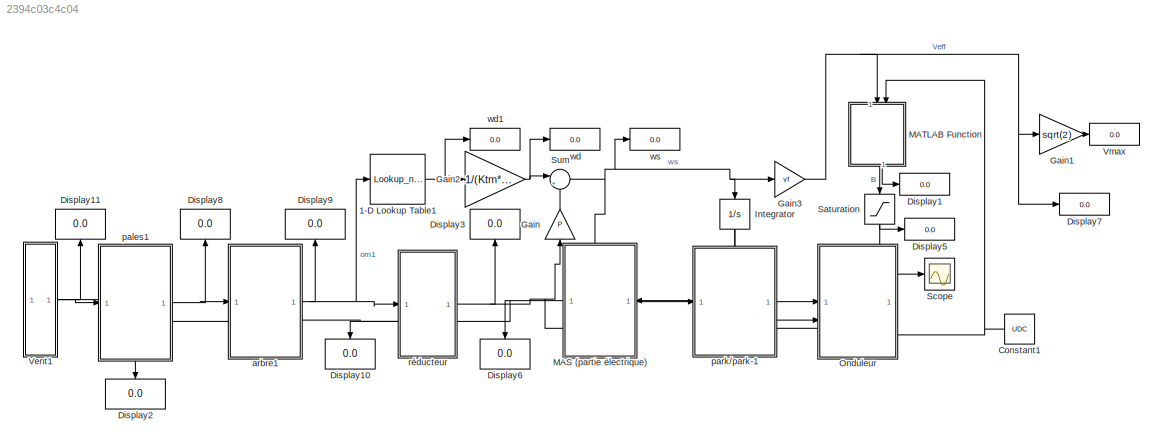
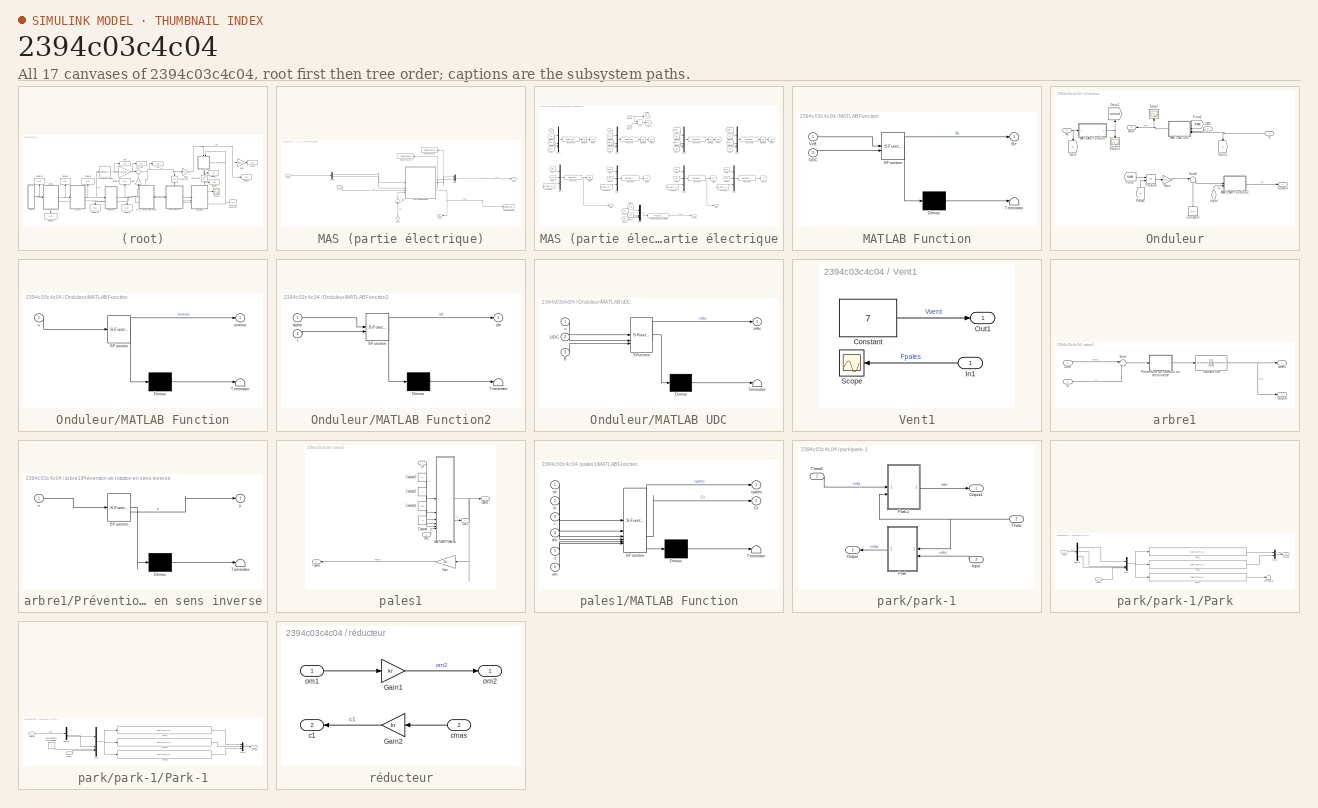
[diagram: thumbnail index - all 17 canvases of the model, root first then tree order]
MODEL slx_2394c03c4c04
KIND model
CONFIG AbsTol = auto
CONFIG EnableMultiTasking = off
CONFIG FixedStep = auto
CONFIG MaxStep = auto
CONFIG MinStep = auto
CONFIG RelTol = 1e-3
CONFIG SampleTimeConstraint = Unconstrained
CONFIG SolverName = VariableStepAuto
CONFIG StartTime = 0.0
CONFIG StopTime = 10.0
BLOCK [Lookup_n-D] 1-D Lookup Table1
  BreakpointsForDimension1 = temp
  InputPortMap = u0
  InternalRulePriority = Speed
  NumberOfTableDimensions = 1
  RndMeth = Simplest
  Table = cmaxfit
BLOCK [Constant] Constant1
  NameLocation = top
  Value = UDC
BLOCK [Display] Display1
  Decimation = 1
BLOCK [Display] Display10
  Decimation = 1
  NameLocation = left
BLOCK [Display] Display11
  Decimation = 1
  NameLocation = right
BLOCK [Display] Display2
  Decimation = 1
  NameLocation = left
BLOCK [Display] Display3
  Decimation = 1
  NameLocation = right
BLOCK [Display] Display5
  Decimation = 1
BLOCK [Display] Display6
  Decimation = 1
  NameLocation = left
BLOCK [Display] Display7
  Decimation = 1
BLOCK [Display] Display8
  Decimation = 1
  NameLocation = right
BLOCK [Display] Display9
  Decimation = 1
  NameLocation = right
BLOCK [Gain] Gain
  Gain = P
  NameLocation = right
BLOCK [Gain] Gain1
  Gain = sqrt(2)
BLOCK [Gain] Gain2
  Gain = 1/(Ktm*kr)
BLOCK [Gain] Gain3
  Gain = vf
BLOCK [Integrator] Integrator
  NameLocation = left
BLOCK [SubSystem] MAS (partie électrique)
  PortSchema = {"entries":[{"content":{"sides":[{"content":{"connectorIds":["Out2","In1"]},"type":"ConnectorPlacement.EquallySpacedRectSide","uuid":"2ecec5eb-5bb6-4f05-bbbb-1a51ae98f814"},{"content":{"connectorIds":["In3","Out1"],"side":"RIGHT"},"type":"ConnectorPlacement.EquallySpacedRectSide","uuid":"ddc3d36f-31b1-43d5-b617-6997f76d08f1"},{"content":{"connectorIds":["In2"],"side":"TOP"},"type":"ConnectorPlacem...<+258ch>
BLOCK [Outport] MAS (partie électrique)/Cmas
BLOCK [Demux] MAS (partie électrique)/Demux
  Outputs = 2
BLOCK [Gain] MAS (partie électrique)/Gain
  Gain = P
  NameLocation = left
BLOCK [Inport] MAS (partie électrique)/Input
  IconDisplay = Signal name
  NameLocation = right
  Port = 3
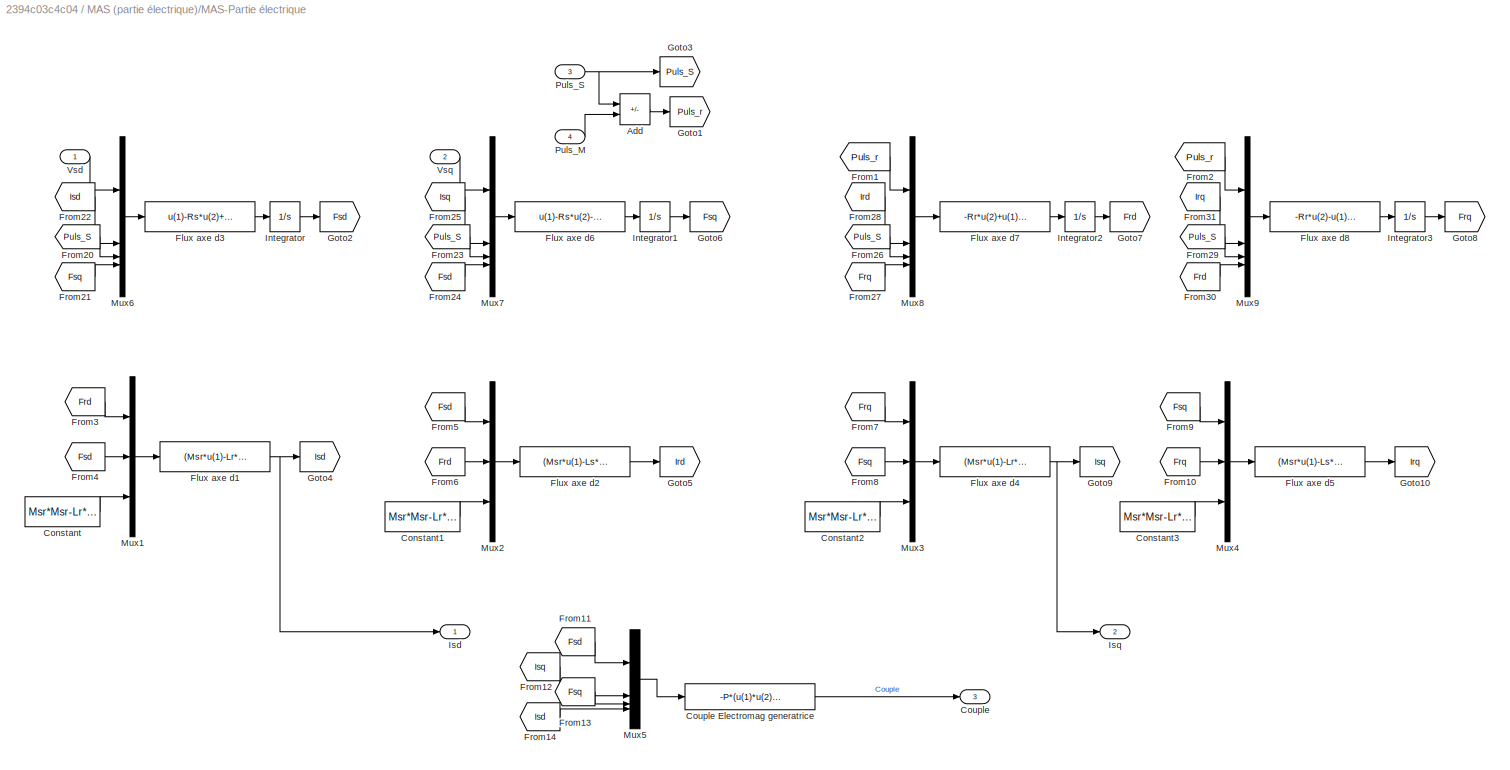
BLOCK [SubSystem] MAS (partie électrique)/MAS-Partie électrique
BLOCK [Sum] MAS (partie électrique)/MAS-Partie électrique/Add
  IconShape = rectangular
  Inputs = +-
BLOCK [Constant] MAS (partie électrique)/MAS-Partie électrique/Constant
  Value = Msr*Msr-Lr*Ls
BLOCK [Constant] MAS (partie électrique)/MAS-Partie électrique/Constant1
  Value = Msr*Msr-Lr*Ls
BLOCK [Constant] MAS (partie électrique)/MAS-Partie électrique/Constant2
  Value = Msr*Msr-Lr*Ls
BLOCK [Constant] MAS (partie électrique)/MAS-Partie électrique/Constant3
  Value = Msr*Msr-Lr*Ls
BLOCK [Outport] MAS (partie électrique)/MAS-Partie électrique/Couple
  Port = 3
BLOCK [Fcn] MAS (partie électrique)/MAS-Partie électrique/Couple Electromag generatrice
  Expr = -P*(u(1)*u(2)-u(3)*u(4))
BLOCK [Fcn] MAS (partie électrique)/MAS-Partie électrique/Flux axe d1
  Expr = (Msr*u(1)-Lr*u(2))/u(3)
BLOCK [Fcn] MAS (partie électrique)/MAS-Partie électrique/Flux axe d2
  Expr = (Msr*u(1)-Ls*u(2))/u(3)
BLOCK [Fcn] MAS (partie électrique)/MAS-Partie électrique/Flux axe d3
  Expr = u(1)-Rs*u(2)+u(3)*u(4)
BLOCK [Fcn] MAS (partie électrique)/MAS-Partie électrique/Flux axe d4
  Expr = (Msr*u(1)-Lr*u(2))/u(3)
BLOCK [Fcn] MAS (partie électrique)/MAS-Partie électrique/Flux axe d5
  Expr = (Msr*u(1)-Ls*u(2))/u(3)
BLOCK [Fcn] MAS (partie électrique)/MAS-Partie électrique/Flux axe d6
  Expr = u(1)-Rs*u(2)-u(3)*u(4)
BLOCK [Fcn] MAS (partie électrique)/MAS-Partie électrique/Flux axe d7
  Expr = -Rr*u(2)+u(1)*u(4)
BLOCK [Fcn] MAS (partie électrique)/MAS-Partie électrique/Flux axe d8
  Expr = -Rr*u(2)-u(1)*u(4)
BLOCK [From] MAS (partie électrique)/MAS-Partie électrique/From1
  GotoTag = Puls_r
BLOCK [From] MAS (partie électrique)/MAS-Partie électrique/From10
  GotoTag = Frq
BLOCK [From] MAS (partie électrique)/MAS-Partie électrique/From11
  GotoTag = Fsd
BLOCK [From] MAS (partie électrique)/MAS-Partie électrique/From12
  GotoTag = Isq
BLOCK [From] MAS (partie électrique)/MAS-Partie électrique/From13
  GotoTag = Fsq
BLOCK [From] MAS (partie électrique)/MAS-Partie électrique/From14
  GotoTag = Isd
BLOCK [From] MAS (partie électrique)/MAS-Partie électrique/From2
  GotoTag = Puls_r
BLOCK [From] MAS (partie électrique)/MAS-Partie électrique/From20
  GotoTag = Puls_S
  IconDisplay = Signal name
BLOCK [From] MAS (partie électrique)/MAS-Partie électrique/From21
  GotoTag = Fsq
BLOCK [From] MAS (partie électrique)/MAS-Partie électrique/From22
  GotoTag = Isd
BLOCK [From] MAS (partie électrique)/MAS-Partie électrique/From23
  GotoTag = Puls_S
  IconDisplay = Signal name
BLOCK [From] MAS (partie électrique)/MAS-Partie électrique/From24
  GotoTag = Fsd
BLOCK [From] MAS (partie électrique)/MAS-Partie électrique/From25
  GotoTag = Isq
BLOCK [From] MAS (partie électrique)/MAS-Partie électrique/From26
  GotoTag = Puls_S
  IconDisplay = Signal name
BLOCK [From] MAS (partie électrique)/MAS-Partie électrique/From27
  GotoTag = Frq
BLOCK [From] MAS (partie électrique)/MAS-Partie électrique/From28
  GotoTag = Ird
BLOCK [From] MAS (partie électrique)/MAS-Partie électrique/From29
  GotoTag = Puls_S
  IconDisplay = Signal name
BLOCK [From] MAS (partie électrique)/MAS-Partie électrique/From3
  GotoTag = Frd
BLOCK [From] MAS (partie électrique)/MAS-Partie électrique/From30
  GotoTag = Frd
BLOCK [From] MAS (partie électrique)/MAS-Partie électrique/From31
  GotoTag = Irq
BLOCK [From] MAS (partie électrique)/MAS-Partie électrique/From4
  GotoTag = Fsd
BLOCK [From] MAS (partie électrique)/MAS-Partie électrique/From5
  GotoTag = Fsd
BLOCK [From] MAS (partie électrique)/MAS-Partie électrique/From6
  GotoTag = Frd
BLOCK [From] MAS (partie électrique)/MAS-Partie électrique/From7
  GotoTag = Frq
BLOCK [From] MAS (partie électrique)/MAS-Partie électrique/From8
  GotoTag = Fsq
BLOCK [From] MAS (partie électrique)/MAS-Partie électrique/From9
  GotoTag = Fsq
BLOCK [Goto] MAS (partie électrique)/MAS-Partie électrique/Goto1
  GotoTag = Puls_r
BLOCK [Goto] MAS (partie électrique)/MAS-Partie électrique/Goto10
  GotoTag = Irq
BLOCK [Goto] MAS (partie électrique)/MAS-Partie électrique/Goto2
  GotoTag = Fsd
BLOCK [Goto] MAS (partie électrique)/MAS-Partie électrique/Goto3
  GotoTag = Puls_S
BLOCK [Goto] MAS (partie électrique)/MAS-Partie électrique/Goto4
  GotoTag = Isd
BLOCK [Goto] MAS (partie électrique)/MAS-Partie électrique/Goto5
  GotoTag = Ird
BLOCK [Goto] MAS (partie électrique)/MAS-Partie électrique/Goto6
  GotoTag = Fsq
BLOCK [Goto] MAS (partie électrique)/MAS-Partie électrique/Goto7
  GotoTag = Frd
BLOCK [Goto] MAS (partie électrique)/MAS-Partie électrique/Goto8
  GotoTag = Frq
BLOCK [Goto] MAS (partie électrique)/MAS-Partie électrique/Goto9
  GotoTag = Isq
BLOCK [Integrator] MAS (partie électrique)/MAS-Partie électrique/Integrator
BLOCK [Integrator] MAS (partie électrique)/MAS-Partie électrique/Integrator1
BLOCK [Integrator] MAS (partie électrique)/MAS-Partie électrique/Integrator2
BLOCK [Integrator] MAS (partie électrique)/MAS-Partie électrique/Integrator3
BLOCK [Outport] MAS (partie électrique)/MAS-Partie électrique/Isd
BLOCK [Outport] MAS (partie électrique)/MAS-Partie électrique/Isq
  Port = 2
BLOCK [Mux] MAS (partie électrique)/MAS-Partie électrique/Mux1
  DisplayOption = bar
  Inputs = 3
BLOCK [Mux] MAS (partie électrique)/MAS-Partie électrique/Mux2
  DisplayOption = bar
  Inputs = 3
BLOCK [Mux] MAS (partie électrique)/MAS-Partie électrique/Mux3
  DisplayOption = bar
  Inputs = 3
BLOCK [Mux] MAS (partie électrique)/MAS-Partie électrique/Mux4
  DisplayOption = bar
  Inputs = 3
BLOCK [Mux] MAS (partie électrique)/MAS-Partie électrique/Mux5
  DisplayOption = bar
BLOCK [Mux] MAS (partie électrique)/MAS-Partie électrique/Mux6
  DisplayOption = bar
BLOCK [Mux] MAS (partie électrique)/MAS-Partie électrique/Mux7
  DisplayOption = bar
BLOCK [Mux] MAS (partie électrique)/MAS-Partie électrique/Mux8
  DisplayOption = bar
BLOCK [Mux] MAS (partie électrique)/MAS-Partie électrique/Mux9
  DisplayOption = bar
BLOCK [Inport] MAS (partie électrique)/MAS-Partie électrique/Puls_M
  Port = 4
BLOCK [Inport] MAS (partie électrique)/MAS-Partie électrique/Puls_S
  Port = 3
BLOCK [Inport] MAS (partie électrique)/MAS-Partie électrique/Vsd
BLOCK [Inport] MAS (partie électrique)/MAS-Partie électrique/Vsq
  Port = 2
BLOCK [Mux] MAS (partie électrique)/Mux
  DisplayOption = bar
  Inputs = 2
BLOCK [ToWorkspace] MAS (partie électrique)/To Workspace
  FixptAsFi = on
  MaxDataPoints = inf
  SampleTime = -1
  Save2DSignal = 2-D array (concatenate along first dimension)
  VariableName = Couple
BLOCK [ToWorkspace] MAS (partie électrique)/To Workspace2
  FixptAsFi = on
  MaxDataPoints = inf
  NameLocation = top
  SampleTime = -1
  SaveFormat = Timeseries
  VariableName = Isd
BLOCK [ToWorkspace] MAS (partie électrique)/To Workspace3
  FixptAsFi = on
  MaxDataPoints = inf
  NameLocation = top
  SampleTime = -1
  SaveFormat = Timeseries
  VariableName = Isq
BLOCK [Outport] MAS (partie électrique)/isdq
  Port = 2
BLOCK [Inport] MAS (partie électrique)/vsdq
BLOCK [Inport] MAS (partie électrique)/vsdq1
  IconDisplay = Signal name
  Port = 2
BLOCK [SubSystem] MATLAB Function
  ErrorFcn = Stateflow.Translate.translate
  NameLocation = left
  PermitHierarchicalResolution = ExplicitOnly
  SFBlockType = MATLAB Function
  TreatAsAtomicUnit = on
BLOCK [Demux] MATLAB Function/ Demux 
  Outputs = 1
BLOCK [S-Function] MATLAB Function/ SFunction 
  EnableBusSupport = on
  FunctionName = sf_sfun
  PortCounts = [2 2]
  SFcnIsStateOwnerBlock = off
  SFunctionDeploymentMode = off
  Tag = Stateflow S-Function 4
BLOCK [Terminator] MATLAB Function/ Terminator 
BLOCK [Outport] MATLAB Function/Be
BLOCK [Inport] MATLAB Function/UDC
  Port = 2
BLOCK [Inport] MATLAB Function/Veff
BLOCK [SubSystem] Onduleur
  PortSchema = {"entries":[{"content":{"sides":[{"content":{"connectorIds":["In1","Out2"]},"type":"ConnectorPlacement.EquallySpacedRectSide","uuid":"b96697a1-7390-4a4c-a090-1d4840f94579"},{"content":{"connectorIds":["Out1","In4"],"side":"RIGHT"},"type":"ConnectorPlacement.EquallySpacedRectSide","uuid":"06d1d8c6-d481-421b-9786-6ed8bea33fb5"},{"content":{"connectorIds":["In2","In3"],"side":"TOP"},"type":"Connector...<+264ch>
BLOCK [Inport] Onduleur/B
  NameLocation = top
  Port = 3
BLOCK [Constant] Onduleur/Constant
  NameLocation = right
  Value = 0.5
BLOCK [From] Onduleur/From
  GotoTag = sinout
BLOCK [From] Onduleur/From1
  GotoTag = B
  NameLocation = right
BLOCK [From] Onduleur/From2
  GotoTag = sinout
  NameLocation = top
BLOCK [Gain] Onduleur/Gain
  Gain = 0.5
BLOCK [Goto] Onduleur/Goto
  GotoTag = wt
  NameLocation = left
  TagVisibility = global
BLOCK [Goto] Onduleur/Goto1
  GotoTag = B
  NameLocation = left
BLOCK [Goto] Onduleur/Goto2
  GotoTag = sinout
  NameLocation = right
BLOCK [Inport] Onduleur/Input
  IconDisplay = Signal name
  NameLocation = right
BLOCK [SubSystem] Onduleur/MATLAB Function
  ErrorFcn = Stateflow.Translate.translate
  LibrarySourceBlock = simulink/User-Defined\nFunctions/MATLAB Function
  PermitHierarchicalResolution = ExplicitOnly
  SFBlockType = MATLAB Function
  TreatAsAtomicUnit = on
BLOCK [Demux] Onduleur/MATLAB Function/ Demux 
  Outputs = 1
BLOCK [S-Function] Onduleur/MATLAB Function/ SFunction 
  EnableBusSupport = on
  FunctionName = sf_sfun
  PortCounts = [1 2]
  SFcnIsStateOwnerBlock = off
  SFunctionDeploymentMode = off
  Tag = Stateflow S-Function 2
BLOCK [Terminator] Onduleur/MATLAB Function/ Terminator 
BLOCK [Outport] Onduleur/MATLAB Function/sineout
BLOCK [Inport] Onduleur/MATLAB Function/u
BLOCK [SubSystem] Onduleur/MATLAB Function2
  ErrorFcn = Stateflow.Translate.translate
  PermitHierarchicalResolution = ExplicitOnly
  SFBlockType = MATLAB Function
  TreatAsAtomicUnit = on
BLOCK [Demux] Onduleur/MATLAB Function2/ Demux 
  Outputs = 1
BLOCK [S-Function] Onduleur/MATLAB Function2/ SFunction 
  EnableBusSupport = on
  FunctionName = sf_sfun
  PortCounts = [2 2]
  SFcnIsStateOwnerBlock = off
  SFunctionDeploymentMode = off
  Tag = Stateflow S-Function 1
BLOCK [Terminator] Onduleur/MATLAB Function2/ Terminator 
BLOCK [Inport] Onduleur/MATLAB Function2/I
  Port = 2
BLOCK [Inport] Onduleur/MATLAB Function2/alpha
BLOCK [Outport] Onduleur/MATLAB Function2/idc
BLOCK [SubSystem] Onduleur/MATLAB UDC
  ErrorFcn = Stateflow.Translate.translate
  NameLocation = top
  PermitHierarchicalResolution = ExplicitOnly
  SFBlockType = MATLAB Function
  TreatAsAtomicUnit = on
BLOCK [Demux] Onduleur/MATLAB UDC/ Demux 
  Outputs = 1
BLOCK [S-Function] Onduleur/MATLAB UDC/ SFunction 
  EnableBusSupport = on
  FunctionName = sf_sfun
  PortCounts = [3 2]
  SFcnIsStateOwnerBlock = off
  SFunctionDeploymentMode = off
  Tag = Stateflow S-Function 6
BLOCK [Terminator] Onduleur/MATLAB UDC/ Terminator 
BLOCK [Inport] Onduleur/MATLAB UDC/B
  Port = 3
BLOCK [Inport] Onduleur/MATLAB UDC/UDC
  Port = 2
BLOCK [Inport] Onduleur/MATLAB UDC/u
BLOCK [Outport] Onduleur/MATLAB UDC/vabc
BLOCK [Outport] Onduleur/Output
  IconDisplay = Signal name
BLOCK [Product] Onduleur/Product
BLOCK [Scope] Onduleur/Scope
  Floating = off
  NameLocation = right
  NumInputPorts = 1
  ScopeSpecificationString = Simulink.scopes.TimeScopeBlockCfg('CurrentConfiguration', extmgr.ConfigurationSet(extmgr.Configuration('Core','General UI',true),extmgr.Configuration('Core','Source UI',true),extmgr.Configuration('Sources','WiredSimulink',true,'DataLoggingVariableName','ScopeData1'),extmgr.Configuration('Visuals','Time Domain',true,'SerializedDisplays',{struct('MinYLimReal','-243.71583','MaxYLimReal','231.75912','...<+1779ch>
BLOCK [Scope] Onduleur/Scope1
  Floating = off
  NameLocation = left
  NumInputPorts = 1
  ScopeSpecificationString = Simulink.scopes.TimeScopeBlockCfg('CurrentConfiguration', extmgr.ConfigurationSet(extmgr.Configuration('Core','General UI',true),extmgr.Configuration('Core','Source UI',true),extmgr.Configuration('Sources','WiredSimulink',true,'DataLoggingVariableName','ScopeData1'),extmgr.Configuration('Visuals','Time Domain',true,'SerializedDisplays',{struct('MinYLimReal','-1.06937','MaxYLimReal','0.97928','YLab...<+1435ch>
BLOCK [Sum] Onduleur/Sum6
  Inputs = |++
BLOCK [Inport] Onduleur/UDC
  NameLocation = top
  Port = 4
BLOCK [Outport] Onduleur/vabc
  Port = 2
BLOCK [Inport] Onduleur/wt
  NameLocation = top
  Port = 2
BLOCK [Saturate] Saturation
  LowerLimit = 0
  NameLocation = left
  UpperLimit = 1
BLOCK [Scope] Scope
  Floating = off
  NumInputPorts = 1
  ScopeSpecificationString = Simulink.scopes.TimeScopeBlockCfg('CurrentConfiguration', extmgr.ConfigurationSet(extmgr.Configuration('Core','General UI',true),extmgr.Configuration('Core','Source UI',true),extmgr.Configuration('Sources','WiredSimulink',true,'DataLoggingVariableName','ScopeData2'),extmgr.Configuration('Visuals','Time Domain',true,'SerializedDisplays',{struct('MinYLimReal','-0.188','MaxYLimReal','1.2315','YLabelR...<+1382ch>
BLOCK [Sum] Sum
  Inputs = |++
BLOCK [SubSystem] Vent1
  PortSchema = {"entries":[{"content":{"sides":[{"content":{"connectorIds":[]},"type":"ConnectorPlacement.EquallySpacedRectSide","uuid":"be9e5db0-62db-41cd-9655-d6d790779573"},{"content":{"connectorIds":["Out1","In1"],"side":"RIGHT"},"type":"ConnectorPlacement.EquallySpacedRectSide","uuid":"b5e788b3-1e5f-4899-a162-7a564b67bc63"},{"content":{"connectorIds":[],"side":"TOP"},"type":"ConnectorPlacement.EquallySpaced...<+241ch>
BLOCK [Constant] Vent1/Constant
  Value = 7
BLOCK [Inport] Vent1/In1
  IconDisplay = Signal name
BLOCK [Outport] Vent1/Out1
  IconDisplay = Signal name
BLOCK [Scope] Vent1/Scope
  Floating = off
  NameLocation = top
  NumInputPorts = 1
  ScopeSpecificationString = Simulink.scopes.TimeScopeBlockCfg('CurrentConfiguration', extmgr.ConfigurationSet(extmgr.Configuration('Core','General UI',true),extmgr.Configuration('Core','Source UI',true),extmgr.Configuration('Sources','WiredSimulink',true),extmgr.Configuration('Visuals','Time Domain',true),extmgr.Configuration('Tools','Plot Navigation',true),extmgr.Configuration('Tools','Measurements',true)),'Version','2022a'...<+1ch>
BLOCK [Display] Vmax
  Decimation = 1
BLOCK [SubSystem] arbre1
  PortSchema = {"entries":[{"content":{"sides":[{"content":{"connectorIds":["In1","Out2"]},"type":"ConnectorPlacement.EquallySpacedRectSide","uuid":"b8908f99-787f-4ebd-a8c4-361ef654133e"},{"content":{"connectorIds":["Out1","In2"],"side":"RIGHT"},"type":"ConnectorPlacement.EquallySpacedRectSide","uuid":"e7049b46-0747-4182-8580-458ffa90f1c3"},{"content":{"connectorIds":[],"side":"TOP"},"type":"ConnectorPlacement.E...<+253ch>
BLOCK [Inport] arbre1/Cem
  IconDisplay = Signal name
BLOCK [Inport] arbre1/Cr
  IconDisplay = Signal name
  Port = 2
BLOCK [Outport] arbre1/Output
  IconDisplay = Signal name
  Port = 2
BLOCK [SubSystem] arbre1/Prévention de rotation en sens inverse
  ErrorFcn = Stateflow.Translate.translate
  LibrarySourceBlock = simulink/User-Defined\nFunctions/MATLAB Function
  PermitHierarchicalResolution = ExplicitOnly
  SFBlockType = MATLAB Function
  TreatAsAtomicUnit = on
BLOCK [Demux] arbre1/Prévention de rotation en sens inverse/ Demux 
  Outputs = 1
BLOCK [S-Function] arbre1/Prévention de rotation en sens inverse/ SFunction 
  EnableBusSupport = on
  FunctionName = sf_sfun
  PortCounts = [1 2]
  SFcnIsStateOwnerBlock = off
  SFunctionDeploymentMode = off
  Tag = Stateflow S-Function 3
BLOCK [Terminator] arbre1/Prévention de rotation en sens inverse/ Terminator 
BLOCK [Inport] arbre1/Prévention de rotation en sens inverse/u
BLOCK [Outport] arbre1/Prévention de rotation en sens inverse/y
BLOCK [Sum] arbre1/Sum
  Inputs = |++
BLOCK [TransferFcn] arbre1/Transfer Fcn
  Denominator = [J f]
BLOCK [Outport] arbre1/wmec
  IconDisplay = Signal name
BLOCK [SubSystem] pales1
  PortSchema = {"entries":[{"content":{"sides":[{"content":{"connectorIds":["In1","Out3"]},"type":"ConnectorPlacement.EquallySpacedRectSide","uuid":"2ecec5eb-5bb6-4f05-bbbb-1a51ae98f814"},{"content":{"connectorIds":["Out1","In2"],"side":"RIGHT"},"type":"ConnectorPlacement.EquallySpacedRectSide","uuid":"ddc3d36f-31b1-43d5-b617-6997f76d08f1"},{"content":{"connectorIds":[],"side":"TOP"},"type":"ConnectorPlacement.E...<+403ch>
BLOCK [Constant] pales1/Constant
  Value = s
BLOCK [Constant] pales1/Constant1
  Value = rho
BLOCK [Constant] pales1/Constant2
  Value = r
BLOCK [Constant] pales1/Constant3
  Value = b
BLOCK [Outport] pales1/Fpales
  Port = 3
BLOCK [Gain] pales1/Gain
  Gain = 1/r
  NameLocation = top
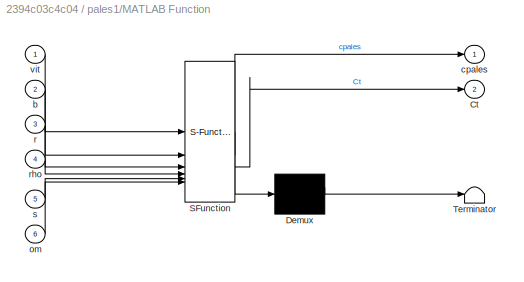
BLOCK [SubSystem] pales1/MATLAB Function
  ErrorFcn = Stateflow.Translate.translate
  PermitHierarchicalResolution = ExplicitOnly
  SFBlockType = MATLAB Function
  TreatAsAtomicUnit = on
BLOCK [Demux] pales1/MATLAB Function/ Demux 
  Outputs = 1
BLOCK [S-Function] pales1/MATLAB Function/ SFunction 
  EnableBusSupport = on
  FunctionName = sf_sfun
  PortCounts = [6 3]
  SFcnIsStateOwnerBlock = off
  SFunctionDeploymentMode = off
  Tag = Stateflow S-Function 5
BLOCK [Terminator] pales1/MATLAB Function/ Terminator 
BLOCK [Outport] pales1/MATLAB Function/Ct
  Port = 2
BLOCK [Inport] pales1/MATLAB Function/b
  Port = 2
BLOCK [Outport] pales1/MATLAB Function/cpales
BLOCK [Inport] pales1/MATLAB Function/om
  Port = 6
BLOCK [Inport] pales1/MATLAB Function/r
  Port = 3
BLOCK [Inport] pales1/MATLAB Function/rho
  Port = 4
BLOCK [Inport] pales1/MATLAB Function/s
  Port = 5
BLOCK [Inport] pales1/MATLAB Function/vit
BLOCK [Outport] pales1/Out1
  IconDisplay = Signal name
  Port = 2
BLOCK [Outport] pales1/cpales
BLOCK [Inport] pales1/om1
  Port = 2
BLOCK [Inport] pales1/vit
BLOCK [SubSystem] park//park-1
  PortSchema = {"entries":[{"content":{"sides":[{"content":{"connectorIds":["In1","Out2"]},"type":"ConnectorPlacement.EquallySpacedRectSide","uuid":"83ad06b1-0178-473a-86b5-0d897bfdf029"},{"content":{"connectorIds":["Out1","In3"],"side":"RIGHT"},"type":"ConnectorPlacement.EquallySpacedRectSide","uuid":"370b5efa-4dd6-4b26-a8f3-51e0a3b4d610"},{"content":{"connectorIds":["In2"],"side":"TOP"},"type":"ConnectorPlacem...<+402ch>
BLOCK [Inport] park//park-1/Input
  IconDisplay = Signal name
  Port = 3
BLOCK [Outport] park//park-1/Output
  IconDisplay = Signal name
  Port = 2
BLOCK [Outport] park//park-1/Output1
  IconDisplay = Signal name
BLOCK [SubSystem] park//park-1/Park
  NameLocation = top
BLOCK [SubSystem] park//park-1/Park-1
BLOCK [Fcn] park//park-1/Park-1/Axe_d
  Expr = sqrt(2/3)*(u(1)*cos(u(4))-u(2)*sin(u(4))+u(3)*(1/sqrt(2)))
BLOCK [Fcn] park//park-1/Park-1/Axe_d1
  Expr = sqrt(2/3)*(u(1)*cos(u(4)-2*pi/3)-u(2)*sin(u(4)-2*pi/3)+u(3)*(1/sqrt(2)))
BLOCK [Fcn] park//park-1/Park-1/Axe_d2
  Expr = sqrt(2/3)*(u(1)*cos(u(4)+2*pi/3)-u(2)*sin(u(4)+2*pi/3)+u(3)*(1/sqrt(2)))
BLOCK [Constant] park//park-1/Park-1/Composante homopolaire
  Value = 0
BLOCK [Demux] park//park-1/Park-1/Demux
  Outputs = 2
BLOCK [Mux] park//park-1/Park-1/Mux
  DisplayOption = bar
BLOCK [Mux] park//park-1/Park-1/Mux1
  DisplayOption = bar
  Inputs = 3
BLOCK [Outport] park//park-1/Park-1/Output
  IconDisplay = Signal name
BLOCK [Inport] park//park-1/Park-1/Theta
  Port = 2
BLOCK [Inport] park//park-1/Park-1/Theta1
  IconDisplay = Signal name
BLOCK [Fcn] park//park-1/Park/ Axe_h
  Expr = sqrt(2/3)*(u(1)*(1/sqrt(2))+u(2)*(1/sqrt(2))+u(3)*(1/sqrt(2)))
BLOCK [Fcn] park//park-1/Park/ Axe_q
  Expr = sqrt(2/3)*(-u(1)*sin(u(4))-u(2)*sin(u(4)-2*pi/3)-u(3)*sin(u(4)-4*pi/3))
BLOCK [Fcn] park//park-1/Park/Axe_d
  Expr = sqrt(2/3)*(u(1)*cos(u(4))+u(2)*cos(u(4)-2*pi/3)+u(3)*cos(u(4)-4*pi/3))
BLOCK [Demux] park//park-1/Park/Demux
  Outputs = 3
BLOCK [Inport] park//park-1/Park/Input
  IconDisplay = Signal name
  Port = 2
BLOCK [Mux] park//park-1/Park/Mux
  DisplayOption = bar
BLOCK [Mux] park//park-1/Park/Mux1
  DisplayOption = bar
  Inputs = 2
BLOCK [Outport] park//park-1/Park/Output
  IconDisplay = Signal name
BLOCK [Terminator] park//park-1/Park/Terminator
BLOCK [Inport] park//park-1/Park/Theta
BLOCK [Inport] park//park-1/Theta
  Port = 2
BLOCK [Inport] park//park-1/Theta1
  IconDisplay = Signal name
BLOCK [SubSystem] réducteur
  PortSchema = {"entries":[{"content":{"sides":[{"content":{"connectorIds":["In1","Out2"]},"type":"ConnectorPlacement.EquallySpacedRectSide","uuid":"2ecec5eb-5bb6-4f05-bbbb-1a51ae98f814"},{"content":{"connectorIds":["Out1","In2"],"side":"RIGHT"},"type":"ConnectorPlacement.EquallySpacedRectSide","uuid":"ddc3d36f-31b1-43d5-b617-6997f76d08f1"},{"content":{"connectorIds":[],"side":"TOP"},"type":"ConnectorPlacement.E...<+253ch>
BLOCK [Gain] réducteur/Gain1
  Gain = kr
BLOCK [Gain] réducteur/Gain2
  Gain = kr
  NameLocation = top
BLOCK [Outport] réducteur/c1
  Port = 2
BLOCK [Inport] réducteur/cmas
  NameLocation = top
  Port = 2
BLOCK [Inport] réducteur/om1
BLOCK [Outport] réducteur/om2
BLOCK [Display] wd
  Decimation = 1
BLOCK [Display] wd1
  Decimation = 1
BLOCK [Display] ws
  Decimation = 1
ANNOTATION park//park-1/Park-1: d
NET 1-D Lookup Table1:1 -> Gain2:1, wd1:1
NET Constant1:1 -> MATLAB Function:2, Onduleur:4
LINE Gain1:1 -> Vmax:1
NET Gain2:1 -> Sum:1, wd:1
NET Gain3:1 -> Display7:1, Gain1:1, MATLAB Function:1
LINE Gain:1 -> Sum:2
NET Integrator:1 -> Onduleur:2, park//park-1:2
LINE MAS (partie électrique)/Demux:1 -> MAS (partie électrique)/MAS-Partie électrique:1
LINE MAS (partie électrique)/Demux:2 -> MAS (partie électrique)/MAS-Partie électrique:2
LINE MAS (partie électrique)/Gain:1 -> MAS (partie électrique)/MAS-Partie électrique:4
LINE MAS (partie électrique)/Input:1 -> MAS (partie électrique)/Gain:1
LINE MAS (partie électrique)/MAS-Partie électrique/Add:1 -> MAS (partie électrique)/MAS-Partie électrique/Goto1:1
LINE MAS (partie électrique)/MAS-Partie électrique/Constant1:1 -> MAS (partie électrique)/MAS-Partie électrique/Mux2:3
LINE MAS (partie électrique)/MAS-Partie électrique/Constant2:1 -> MAS (partie électrique)/MAS-Partie électrique/Mux3:3
LINE MAS (partie électrique)/MAS-Partie électrique/Constant3:1 -> MAS (partie électrique)/MAS-Partie électrique/Mux4:3
LINE MAS (partie électrique)/MAS-Partie électrique/Constant:1 -> MAS (partie électrique)/MAS-Partie électrique/Mux1:3
LINE MAS (partie électrique)/MAS-Partie électrique/Couple Electromag generatrice:1 -> MAS (partie électrique)/MAS-Partie électrique/Couple:1
NET MAS (partie électrique)/MAS-Partie électrique/Flux axe d1:1 -> MAS (partie électrique)/MAS-Partie électrique/Goto4:1, MAS (partie électrique)/MAS-Partie électrique/Isd:1
LINE MAS (partie électrique)/MAS-Partie électrique/Flux axe d2:1 -> MAS (partie électrique)/MAS-Partie électrique/Goto5:1
LINE MAS (partie électrique)/MAS-Partie électrique/Flux axe d3:1 -> MAS (partie électrique)/MAS-Partie électrique/Integrator:1
NET MAS (partie électrique)/MAS-Partie électrique/Flux axe d4:1 -> MAS (partie électrique)/MAS-Partie électrique/Goto9:1, MAS (partie électrique)/MAS-Partie électrique/Isq:1
LINE MAS (partie électrique)/MAS-Partie électrique/Flux axe d5:1 -> MAS (partie électrique)/MAS-Partie électrique/Goto10:1
LINE MAS (partie électrique)/MAS-Partie électrique/Flux axe d6:1 -> MAS (partie électrique)/MAS-Partie électrique/Integrator1:1
LINE MAS (partie électrique)/MAS-Partie électrique/Flux axe d7:1 -> MAS (partie électrique)/MAS-Partie électrique/Integrator2:1
LINE MAS (partie électrique)/MAS-Partie électrique/Flux axe d8:1 -> MAS (partie électrique)/MAS-Partie électrique/Integrator3:1
LINE MAS (partie électrique)/MAS-Partie électrique/From10:1 -> MAS (partie électrique)/MAS-Partie électrique/Mux4:2
LINE MAS (partie électrique)/MAS-Partie électrique/From11:1 -> MAS (partie électrique)/MAS-Partie électrique/Mux5:1
LINE MAS (partie électrique)/MAS-Partie électrique/From12:1 -> MAS (partie électrique)/MAS-Partie électrique/Mux5:2
LINE MAS (partie électrique)/MAS-Partie électrique/From13:1 -> MAS (partie électrique)/MAS-Partie électrique/Mux5:3
LINE MAS (partie électrique)/MAS-Partie électrique/From14:1 -> MAS (partie électrique)/MAS-Partie électrique/Mux5:4
LINE MAS (partie électrique)/MAS-Partie électrique/From1:1 -> MAS (partie électrique)/MAS-Partie électrique/Mux8:1
LINE MAS (partie électrique)/MAS-Partie électrique/From20:1 -> MAS (partie électrique)/MAS-Partie électrique/Mux6:3
LINE MAS (partie électrique)/MAS-Partie électrique/From21:1 -> MAS (partie électrique)/MAS-Partie électrique/Mux6:4
LINE MAS (partie électrique)/MAS-Partie électrique/From22:1 -> MAS (partie électrique)/MAS-Partie électrique/Mux6:2
LINE MAS (partie électrique)/MAS-Partie électrique/From23:1 -> MAS (partie électrique)/MAS-Partie électrique/Mux7:3
LINE MAS (partie électrique)/MAS-Partie électrique/From24:1 -> MAS (partie électrique)/MAS-Partie électrique/Mux7:4
LINE MAS (partie électrique)/MAS-Partie électrique/From25:1 -> MAS (partie électrique)/MAS-Partie électrique/Mux7:2
LINE MAS (partie électrique)/MAS-Partie électrique/From26:1 -> MAS (partie électrique)/MAS-Partie électrique/Mux8:3
LINE MAS (partie électrique)/MAS-Partie électrique/From27:1 -> MAS (partie électrique)/MAS-Partie électrique/Mux8:4
LINE MAS (partie électrique)/MAS-Partie électrique/From28:1 -> MAS (partie électrique)/MAS-Partie électrique/Mux8:2
LINE MAS (partie électrique)/MAS-Partie électrique/From29:1 -> MAS (partie électrique)/MAS-Partie électrique/Mux9:3
LINE MAS (partie électrique)/MAS-Partie électrique/From2:1 -> MAS (partie électrique)/MAS-Partie électrique/Mux9:1
LINE MAS (partie électrique)/MAS-Partie électrique/From30:1 -> MAS (partie électrique)/MAS-Partie électrique/Mux9:4
LINE MAS (partie électrique)/MAS-Partie électrique/From31:1 -> MAS (partie électrique)/MAS-Partie électrique/Mux9:2
LINE MAS (partie électrique)/MAS-Partie électrique/From3:1 -> MAS (partie électrique)/MAS-Partie électrique/Mux1:1
LINE MAS (partie électrique)/MAS-Partie électrique/From4:1 -> MAS (partie électrique)/MAS-Partie électrique/Mux1:2
LINE MAS (partie électrique)/MAS-Partie électrique/From5:1 -> MAS (partie électrique)/MAS-Partie électrique/Mux2:1
LINE MAS (partie électrique)/MAS-Partie électrique/From6:1 -> MAS (partie électrique)/MAS-Partie électrique/Mux2:2
LINE MAS (partie électrique)/MAS-Partie électrique/From7:1 -> MAS (partie électrique)/MAS-Partie électrique/Mux3:1
LINE MAS (partie électrique)/MAS-Partie électrique/From8:1 -> MAS (partie électrique)/MAS-Partie électrique/Mux3:2
LINE MAS (partie électrique)/MAS-Partie électrique/From9:1 -> MAS (partie électrique)/MAS-Partie électrique/Mux4:1
LINE MAS (partie électrique)/MAS-Partie électrique/Integrator1:1 -> MAS (partie électrique)/MAS-Partie électrique/Goto6:1
LINE MAS (partie électrique)/MAS-Partie électrique/Integrator2:1 -> MAS (partie électrique)/MAS-Partie électrique/Goto7:1
LINE MAS (partie électrique)/MAS-Partie électrique/Integrator3:1 -> MAS (partie électrique)/MAS-Partie électrique/Goto8:1
LINE MAS (partie électrique)/MAS-Partie électrique/Integrator:1 -> MAS (partie électrique)/MAS-Partie électrique/Goto2:1
LINE MAS (partie électrique)/MAS-Partie électrique/Mux1:1 -> MAS (partie électrique)/MAS-Partie électrique/Flux axe d1:1
LINE MAS (partie électrique)/MAS-Partie électrique/Mux2:1 -> MAS (partie électrique)/MAS-Partie électrique/Flux axe d2:1
LINE MAS (partie électrique)/MAS-Partie électrique/Mux3:1 -> MAS (partie électrique)/MAS-Partie électrique/Flux axe d4:1
LINE MAS (partie électrique)/MAS-Partie électrique/Mux4:1 -> MAS (partie électrique)/MAS-Partie électrique/Flux axe d5:1
LINE MAS (partie électrique)/MAS-Partie électrique/Mux5:1 -> MAS (partie électrique)/MAS-Partie électrique/Couple Electromag generatrice:1
LINE MAS (partie électrique)/MAS-Partie électrique/Mux6:1 -> MAS (partie électrique)/MAS-Partie électrique/Flux axe d3:1
LINE MAS (partie électrique)/MAS-Partie électrique/Mux7:1 -> MAS (partie électrique)/MAS-Partie électrique/Flux axe d6:1
LINE MAS (partie électrique)/MAS-Partie électrique/Mux8:1 -> MAS (partie électrique)/MAS-Partie électrique/Flux axe d7:1
LINE MAS (partie électrique)/MAS-Partie électrique/Mux9:1 -> MAS (partie électrique)/MAS-Partie électrique/Flux axe d8:1
LINE MAS (partie électrique)/MAS-Partie électrique/Puls_M:1 -> MAS (partie électrique)/MAS-Partie électrique/Add:2
NET MAS (partie électrique)/MAS-Partie électrique/Puls_S:1 -> MAS (partie électrique)/MAS-Partie électrique/Add:1, MAS (partie électrique)/MAS-Partie électrique/Goto3:1
LINE MAS (partie électrique)/MAS-Partie électrique/Vsd:1 -> MAS (partie électrique)/MAS-Partie électrique/Mux6:1
LINE MAS (partie électrique)/MAS-Partie électrique/Vsq:1 -> MAS (partie électrique)/MAS-Partie électrique/Mux7:1
NET MAS (partie électrique)/MAS-Partie électrique:1 -> MAS (partie électrique)/Mux:1, MAS (partie électrique)/To Workspace2:1
NET MAS (partie électrique)/MAS-Partie électrique:2 -> MAS (partie électrique)/Mux:2, MAS (partie électrique)/To Workspace3:1
NET MAS (partie électrique)/MAS-Partie électrique:3 -> MAS (partie électrique)/Cmas:1, MAS (partie électrique)/To Workspace:1
LINE MAS (partie électrique)/Mux:1 -> MAS (partie électrique)/isdq:1
LINE MAS (partie électrique)/vsdq1:1 -> MAS (partie électrique)/MAS-Partie électrique:3
LINE MAS (partie électrique)/vsdq:1 -> MAS (partie électrique)/Demux:1
NET MAS (partie électrique):1 -> Display6:1, réducteur:2
LINE MAS (partie électrique):2 -> park//park-1:1
NET MATLAB Function:1 -> Display1:1, Saturation:1
NET Onduleur/B:1 -> Onduleur/Goto1:1, Onduleur/MATLAB UDC:3
LINE Onduleur/Constant:1 -> Onduleur/Sum6:2
LINE Onduleur/From1:1 -> Onduleur/Product:2
LINE Onduleur/From2:1 -> Onduleur/MATLAB UDC:1
LINE Onduleur/From:1 -> Onduleur/Product:1
LINE Onduleur/Gain:1 -> Onduleur/Sum6:1
LINE Onduleur/Input:1 -> Onduleur/MATLAB Function2:2
LINE Onduleur/MATLAB Function2:1 -> Onduleur/Output:1
NET Onduleur/MATLAB Function:1 -> Onduleur/Goto2:1, Onduleur/Scope1:1
NET Onduleur/MATLAB UDC:1 -> Onduleur/Scope:1, Onduleur/vabc:1
LINE Onduleur/Product:1 -> Onduleur/Gain:1
LINE Onduleur/Sum6:1 -> Onduleur/MATLAB Function2:1
LINE Onduleur/UDC:1 -> Onduleur/MATLAB UDC:2
NET Onduleur/wt:1 -> Onduleur/Goto:1, Onduleur/MATLAB Function:1
LINE Onduleur:1 -> Scope:1
LINE Onduleur:2 -> park//park-1:3
NET Saturation:1 -> Display5:1, Onduleur:3
NET Sum:1 -> Gain3:1, Integrator:1, MAS (partie électrique):2, ws:1
LINE Vent1/Constant:1 -> Vent1/Out1:1
LINE Vent1/In1:1 -> Vent1/Scope:1
NET Vent1:1 -> Display11:1, pales1:1
LINE arbre1/Cem:1 -> arbre1/Sum:1
LINE arbre1/Cr:1 -> arbre1/Sum:2
LINE arbre1/Prévention de rotation en sens inverse:1 -> arbre1/Transfer Fcn:1
LINE arbre1/Sum:1 -> arbre1/Prévention de rotation en sens inverse:1
NET arbre1/Transfer Fcn:1 -> arbre1/Output:1, arbre1/wmec:1
NET arbre1:1 -> 1-D Lookup Table1:1, Display9:1, réducteur:1
LINE arbre1:2 -> pales1:2
LINE pales1/Constant1:1 -> pales1/MATLAB Function:4
LINE pales1/Constant2:1 -> pales1/MATLAB Function:3
LINE pales1/Constant3:1 -> pales1/MATLAB Function:2
LINE pales1/Constant:1 -> pales1/MATLAB Function:5
LINE pales1/Gain:1 -> pales1/Fpales:1
NET pales1/MATLAB Function:1 -> pales1/Gain:1, pales1/cpales:1
LINE pales1/MATLAB Function:2 -> pales1/Out1:1
LINE pales1/om1:1 -> pales1/MATLAB Function:6
LINE pales1/vit:1 -> pales1/MATLAB Function:1
NET pales1:1 -> Display8:1, arbre1:1
LINE pales1:2 -> Display2:1
LINE pales1:3 -> Vent1:1
LINE park//park-1/Input:1 -> park//park-1/Park:2
LINE park//park-1/Park-1/Axe_d1:1 -> park//park-1/Park-1/Mux1:2
LINE park//park-1/Park-1/Axe_d2:1 -> park//park-1/Park-1/Mux1:3
LINE park//park-1/Park-1/Axe_d:1 -> park//park-1/Park-1/Mux1:1
LINE park//park-1/Park-1/Composante homopolaire:1 -> park//park-1/Park-1/Mux:3
LINE park//park-1/Park-1/Demux:1 -> park//park-1/Park-1/Mux:1
LINE park//park-1/Park-1/Demux:2 -> park//park-1/Park-1/Mux:2
LINE park//park-1/Park-1/Mux1:1 -> park//park-1/Park-1/Output:1
NET park//park-1/Park-1/Mux:1 -> park//park-1/Park-1/Axe_d1:1, park//park-1/Park-1/Axe_d2:1, park//park-1/Park-1/Axe_d:1
LINE park//park-1/Park-1/Theta1:1 -> park//park-1/Park-1/Demux:1
LINE park//park-1/Park-1/Theta:1 -> park//park-1/Park-1/Mux:4
LINE park//park-1/Park-1:1 -> park//park-1/Output1:1
LINE park//park-1/Park/ Axe_h:1 -> park//park-1/Park/Terminator:1
LINE park//park-1/Park/ Axe_q:1 -> park//park-1/Park/Mux1:2
LINE park//park-1/Park/Axe_d:1 -> park//park-1/Park/Mux1:1
LINE park//park-1/Park/Demux:1 -> park//park-1/Park/Mux:1
LINE park//park-1/Park/Demux:2 -> park//park-1/Park/Mux:2
LINE park//park-1/Park/Demux:3 -> park//park-1/Park/Mux:3
LINE park//park-1/Park/Input:1 -> park//park-1/Park/Demux:1
LINE park//park-1/Park/Mux1:1 -> park//park-1/Park/Output:1
NET park//park-1/Park/Mux:1 -> park//park-1/Park/ Axe_h:1, park//park-1/Park/ Axe_q:1, park//park-1/Park/Axe_d:1
LINE park//park-1/Park/Theta:1 -> park//park-1/Park/Mux:4
LINE park//park-1/Park:1 -> park//park-1/Output:1
LINE park//park-1/Theta1:1 -> park//park-1/Park-1:1
NET park//park-1/Theta:1 -> park//park-1/Park-1:2, park//park-1/Park:1
LINE park//park-1:1 -> Onduleur:1
LINE park//park-1:2 -> MAS (partie électrique):1
LINE réducteur/Gain1:1 -> réducteur/om2:1
LINE réducteur/Gain2:1 -> réducteur/c1:1
LINE réducteur/cmas:1 -> réducteur/Gain2:1
LINE réducteur/om1:1 -> réducteur/Gain1:1
NET réducteur:1 -> Display3:1, Gain:1, MAS (partie électrique):3
NET réducteur:2 -> Display10:1, arbre1:2
note: NET lines group one-source signal fan-out (src -> all destinations, sorted); 1:1 wires keep LINE
CHART Onduleur/MATLAB Function2 states=1 transitions=1
  STATE_LABEL 'eML_blk_kernel()'
  STATE_LABEL "SCRIPT:\nfunction idc = idcfcn(alpha,I)\n\nidc = 0.5*(alpha)'*I;\n"
CHART Onduleur/MATLAB Function states=1 transitions=1
  STATE_LABEL 'eML_blk_kernel()'
  STATE_LABEL 'SCRIPT:\nfunction sineout = Sinegenerator(u)\n\ny1 = sin(u);\ny2 = sin(u-2*pi/3);\ny3 = sin(u+2*pi/3);\n\nsineout=[y1; y2;y3];'
CHART arbre1/Prévention de rotation en sens inverse states=1 transitions=1
  STATE_LABEL 'eML_blk_kernel()'
  STATE_LABEL 'SCRIPT:\nfunction y = fcn(u)\nif u>0\n    y=u;\nelse\n    y=0;\nend'
CHART MATLAB Function states=1 transitions=1
  STATE_LABEL 'eML_blk_kernel()'
  STATE_LABEL 'SCRIPT:\nfunction Be = Gain(Veff,UDC)\n\nBe =Veff* 2*sqrt(2)/UDC;\n'
CHART pales1/MATLAB Function states=1 transitions=1
  STATE_LABEL 'eML_blk_kernel()'
  STATE_LABEL "SCRIPT:\nfunction [cpales,Ct] = fcn(vit,b,r,rho,s,om)\n\n    lamb=r*om/vit;\n  \n    if lamb==0    % Pour éviter d'avoir une division par zero par la suite\n        lamb=0.001;\n    end\n        lamb1=1/((1/(lamb+0.089*b))-(0.035/(b^3+1)));\n        Cp=0.5*(116/lamb1-0.4*(b-5))*exp(-16.5/lamb1);\n        Ct=Cp/lamb;\n        \n        if Ct<=0\n            Ct=0.01;\n        end\n\n        cpales=0.5*rho*Ct*r*s*vi...<+13ch>"
CHART Onduleur/MATLAB UDC states=1 transitions=1
  STATE_LABEL 'eML_blk_kernel()'
  STATE_LABEL 'SCRIPT:\nfunction vabc = gain(u,UDC,B)\n\n\nvabc =0.5*UDC*B.*u;\n\n'
CHART  states=0 transitions=0
CHART  states=0 transitions=0
CHART  states=0 transitions=0
CHART  states=0 transitions=0
CHART  states=0 transitions=0
CHART  states=0 transitions=0
